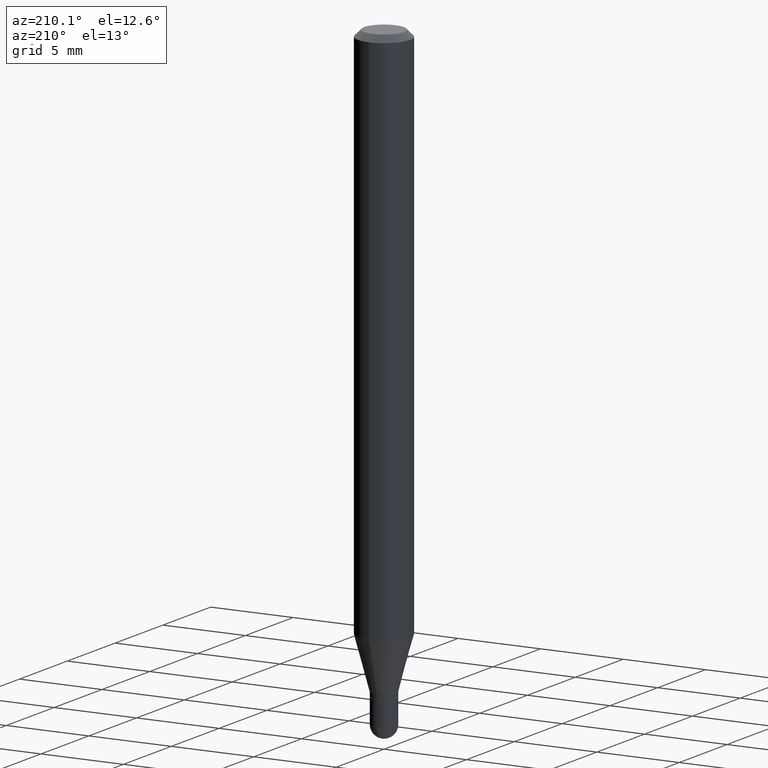
[diagram: clean part render]
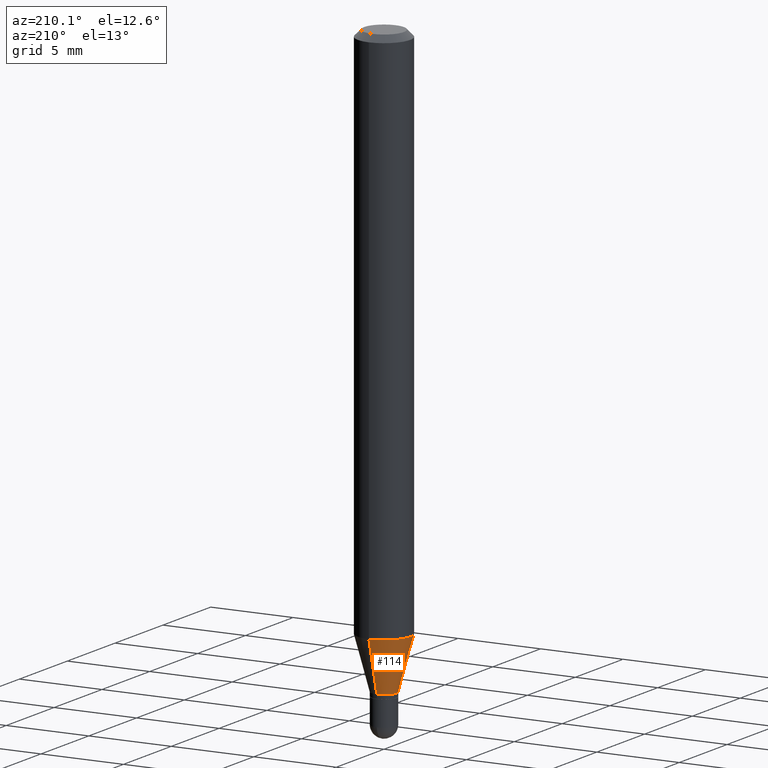
[diagram: same view with one face highlighted and labeled with its STEP entity id]
A machine part, auxiliary view. The second image highlights one B-rep face of the part: STEP entity #114.
In plain terms, the highlighted conical surface has half-angle 15 deg.
Its self-contained STEP definition (entity closure, byte-faithful):
#8 = AXIS2_PLACEMENT_3D ( 'NONE', #153, #46, #313 ) ;
#19 = CARTESIAN_POINT ( 'NONE',  ( 3.426119676265345091E-29, -4.891539752260095021E-15, -1.401000000000000245 ) ) ;
#27 = EDGE_CURVE ( 'NONE', #292, #479, #399, .T. ) ;
#44 = CIRCLE ( 'NONE', #440, 0.06250000000000000000 ) ;
#46 = DIRECTION ( 'NONE',  ( -2.445481567641216773E-29, 3.491463063711701769E-15, 1.000000000000000000 ) ) ;
#47 = EDGE_CURVE ( 'NONE', #422, #471, #397, .T. ) ;
#84 = CONICAL_SURFACE ( 'NONE', #8, 0.02950000000000019967, 0.2617993877991505736 ) ;
#95 = CARTESIAN_POINT ( 'NONE',  ( -2.059973989917119804E-16, -0.02950000000000509159, -1.401000000000000245 ) ) ;
#114 = ADVANCED_FACE ( 'NONE', ( #193 ), #84, .T. ) ;
#123 = CARTESIAN_POINT ( 'NONE',  ( -4.364351673553605587E-16, -0.06250000000000449640, -1.277842323350228293 ) ) ;
#133 = DIRECTION ( 'NONE',  ( -2.445481567641216773E-29, 3.491463063711701769E-15, 1.000000000000000000 ) ) ;
#153 = CARTESIAN_POINT ( 'NONE',  ( 3.426119676265345091E-29, -4.891539752260095021E-15, -1.401000000000000245 ) ) ;
#154 = DIRECTION ( 'NONE',  ( -1.807323732225332111E-15, -0.2588190451025184635, 0.9659258262890689783 ) ) ;
#158 = CARTESIAN_POINT ( 'NONE',  ( 2.096101070492652151E-16, 0.02949999999999530775, -1.401000000000000245 ) ) ;
#164 = EDGE_LOOP ( 'NONE', ( #246, #377, #229, #505 ) ) ;
#193 = FACE_OUTER_BOUND ( 'NONE', #164, .T. ) ;
#210 = EDGE_CURVE ( 'NONE', #422, #292, #486, .T. ) ;
#229 = ORIENTED_EDGE ( 'NONE', *, *, #27, .T. ) ;
#246 = ORIENTED_EDGE ( 'NONE', *, *, #47, .F. ) ;
#292 = VERTEX_POINT ( 'NONE', #95 ) ;
#298 = EDGE_CURVE ( 'NONE', #471, #479, #44, .T. ) ;
#300 = DIRECTION ( 'NONE',  ( -2.445481567641216773E-29, 3.491463063711701769E-15, 1.000000000000000000 ) ) ;
#313 = DIRECTION ( 'NONE',  ( -6.982962677686265922E-15, -1.000000000000000000, 0.000000000000000000 ) ) ;
#346 = VECTOR ( 'NONE', #353, 39.37007874015748143 ) ;
#351 = CARTESIAN_POINT ( 'NONE',  ( -2.059973989917119804E-16, -0.02950000000000509159, -1.401000000000000245 ) ) ;
#353 = DIRECTION ( 'NONE',  ( 1.839019923739602287E-15, 0.2588190451025252359, 0.9659258262890670910 ) ) ;
#370 = DIRECTION ( 'NONE',  ( -6.982962677686265922E-15, -1.000000000000000000, 0.000000000000000000 ) ) ;
#377 = ORIENTED_EDGE ( 'NONE', *, *, #210, .T. ) ;
#383 = VECTOR ( 'NONE', #154, 39.37007874015748854 ) ;
#396 = CARTESIAN_POINT ( 'NONE',  ( 3.124939848104811394E-29, -4.461539273224868558E-15, -1.277842323350228515 ) ) ;
#397 = LINE ( 'NONE', #158, #346 ) ;
#399 = LINE ( 'NONE', #351, #383 ) ;
#404 = CARTESIAN_POINT ( 'NONE',  ( 4.440892098500935790E-16, 0.06249999999999550360, -1.277842323350228737 ) ) ;
#422 = VERTEX_POINT ( 'NONE', #466 ) ;
#440 = AXIS2_PLACEMENT_3D ( 'NONE', #396, #300, #463 ) ;
#443 = AXIS2_PLACEMENT_3D ( 'NONE', #19, #133, #370 ) ;
#463 = DIRECTION ( 'NONE',  ( -6.982962677686265922E-15, -1.000000000000000000, 4.370956789862821150E-15 ) ) ;
#466 = CARTESIAN_POINT ( 'NONE',  ( 3.268496584496795573E-16, 0.02949999999999530775, -1.401000000000000245 ) ) ;
#471 = VERTEX_POINT ( 'NONE', #404 ) ;
#479 = VERTEX_POINT ( 'NONE', #123 ) ;
#486 = CIRCLE ( 'NONE', #443, 0.02950000000000019967 ) ;
#505 = ORIENTED_EDGE ( 'NONE', *, *, #298, .F. ) ;